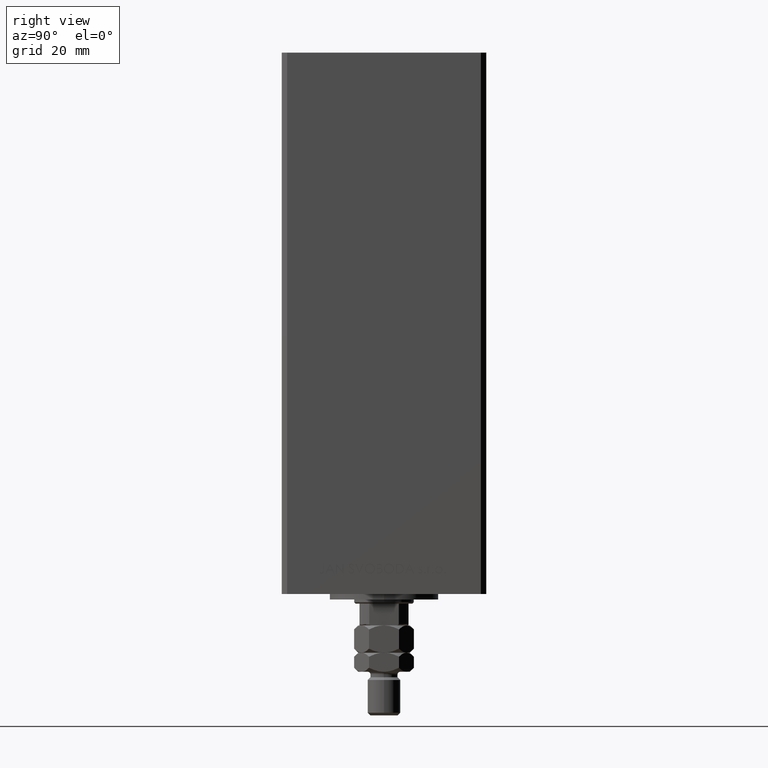
[diagram: clean part render]
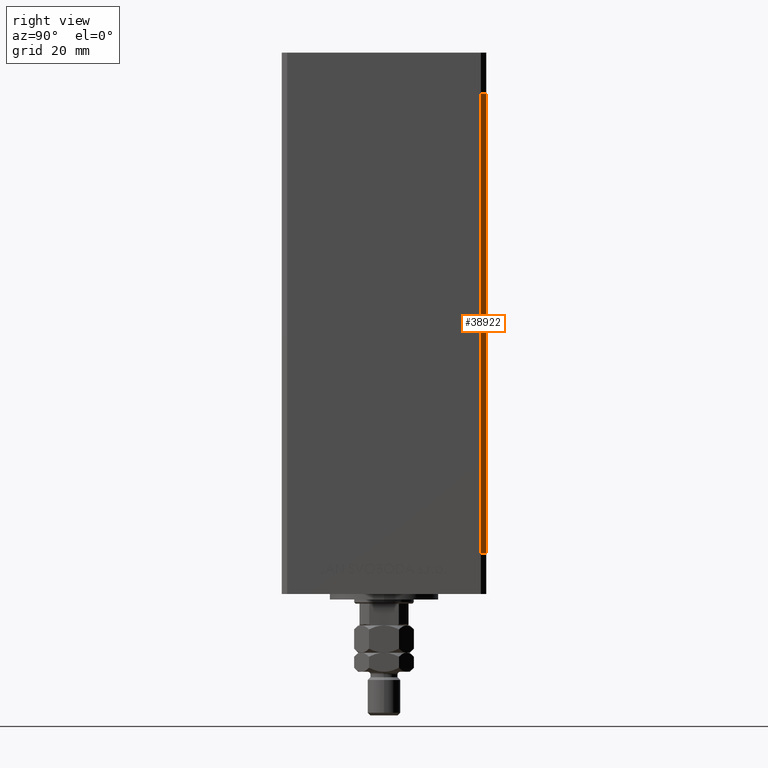
[diagram: same view with one face highlighted and labeled with its STEP entity id]
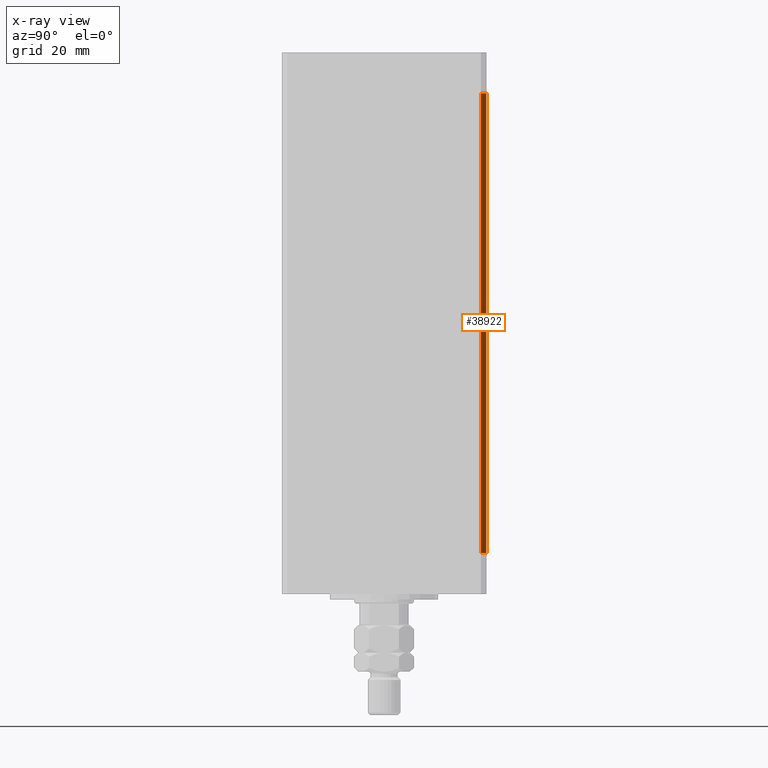
[diagram: x-ray of the same camera — body ghosted, the highlighted face saturated]
A machine part, right view. The second image highlights one B-rep face of the part: STEP entity #38922.
The next image is the same camera in x-ray: the body ghosted, the highlighted face saturated — about 0% of this face is hidden behind the body in this view.
In plain terms, the highlighted planar face has unit normal (0.7071, 0.7071, 0).
Its self-contained STEP definition (entity closure, byte-faithful):
#880 = CARTESIAN_POINT ( 'NONE',  ( 40.50000000000000000, 37.50000000000000711, 168.5000000000000000 ) ) ;
#1750 = EDGE_CURVE ( 'NONE', #45797, #24001, #21169, .T. ) ;
#3989 = LINE ( 'NONE', #31843, #50465 ) ;
#4721 = CARTESIAN_POINT ( 'NONE',  ( 42.50000000000000711, 35.50000000000001421, 168.5000000000000000 ) ) ;
#8642 = AXIS2_PLACEMENT_3D ( 'NONE', #880, #12892, #28726 ) ;
#10009 = EDGE_CURVE ( 'NONE', #32917, #43648, #39061, .T. ) ;
#10098 = ORIENTED_EDGE ( 'NONE', *, *, #1750, .F. ) ;
#10986 = LINE ( 'NONE', #42151, #43695 ) ;
#12332 = VECTOR ( 'NONE', #24991, 1000.000000000000000 ) ;
#12388 = FACE_OUTER_BOUND ( 'NONE', #36465, .T. ) ;
#12892 = DIRECTION ( 'NONE',  ( 0.7071067811865451302, 0.7071067811865500152, -0.000000000000000000 ) ) ;
#13008 = CARTESIAN_POINT ( 'NONE',  ( 40.50000000000000000, 37.50000000000000711, 0.000000000000000000 ) ) ;
#13894 = CARTESIAN_POINT ( 'NONE',  ( 42.50000000000000711, 35.50000000000001421, 0.000000000000000000 ) ) ;
#16320 = CARTESIAN_POINT ( 'NONE',  ( 42.50000000000000711, 35.50000000000001421, 168.5000000000000000 ) ) ;
#21169 = LINE ( 'NONE', #36739, #12332 ) ;
#22736 = DIRECTION ( 'NONE',  ( 0.7071067811865500152, -0.7071067811865451302, 0.000000000000000000 ) ) ;
#22829 = ORIENTED_EDGE ( 'NONE', *, *, #38255, .T. ) ;
#23887 = ORIENTED_EDGE ( 'NONE', *, *, #49345, .F. ) ;
#24001 = VERTEX_POINT ( 'NONE', #13008 ) ;
#24991 = DIRECTION ( 'NONE',  ( -0.000000000000000000, -0.000000000000000000, -1.000000000000000000 ) ) ;
#28726 = DIRECTION ( 'NONE',  ( -0.7071067811865500152, 0.7071067811865451302, 0.000000000000000000 ) ) ;
#28989 = PLANE ( 'NONE',  #8642 ) ;
#31804 = ORIENTED_EDGE ( 'NONE', *, *, #10009, .T. ) ;
#31843 = CARTESIAN_POINT ( 'NONE',  ( 40.50000000000000000, 37.50000000000000711, 0.000000000000000000 ) ) ;
#31973 = CARTESIAN_POINT ( 'NONE',  ( 40.50000000000000000, 37.50000000000000711, 168.5000000000000000 ) ) ;
#32917 = VERTEX_POINT ( 'NONE', #4721 ) ;
#36465 = EDGE_LOOP ( 'NONE', ( #23887, #10098, #22829, #31804 ) ) ;
#36739 = CARTESIAN_POINT ( 'NONE',  ( 40.50000000000000000, 37.50000000000000711, 168.5000000000000000 ) ) ;
#38066 = DIRECTION ( 'NONE',  ( 0.7071067811865500152, -0.7071067811865451302, 0.000000000000000000 ) ) ;
#38255 = EDGE_CURVE ( 'NONE', #45797, #32917, #10986, .T. ) ;
#38922 = ADVANCED_FACE ( 'NONE', ( #12388 ), #28989, .T. ) ;
#39061 = LINE ( 'NONE', #16320, #43473 ) ;
#42151 = CARTESIAN_POINT ( 'NONE',  ( 40.50000000000000000, 37.50000000000000711, 168.5000000000000000 ) ) ;
#43473 = VECTOR ( 'NONE', #46748, 1000.000000000000000 ) ;
#43648 = VERTEX_POINT ( 'NONE', #13894 ) ;
#43695 = VECTOR ( 'NONE', #22736, 1000.000000000000114 ) ;
#45797 = VERTEX_POINT ( 'NONE', #31973 ) ;
#46748 = DIRECTION ( 'NONE',  ( -0.000000000000000000, -0.000000000000000000, -1.000000000000000000 ) ) ;
#49345 = EDGE_CURVE ( 'NONE', #24001, #43648, #3989, .T. ) ;
#50465 = VECTOR ( 'NONE', #38066, 1000.000000000000114 ) ;